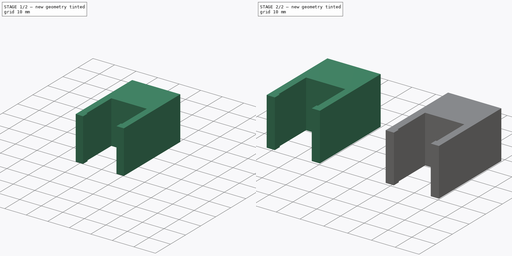
[diagram: build sequence overview — one tinted view per stage of 2, left to right]
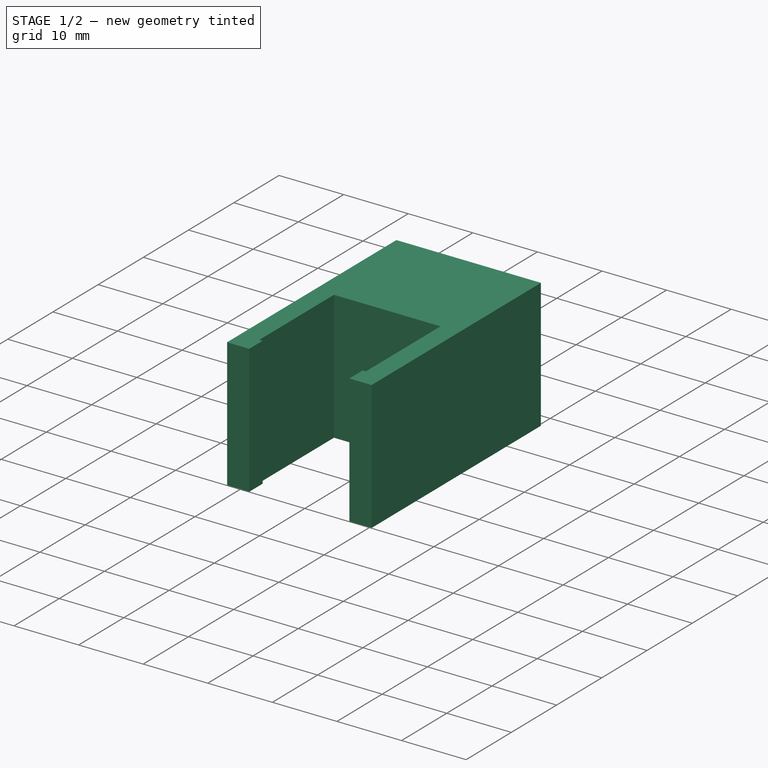
[diagram: stage 1 of 2 — iso view after this stage's code; geometry added in this stage tinted green]
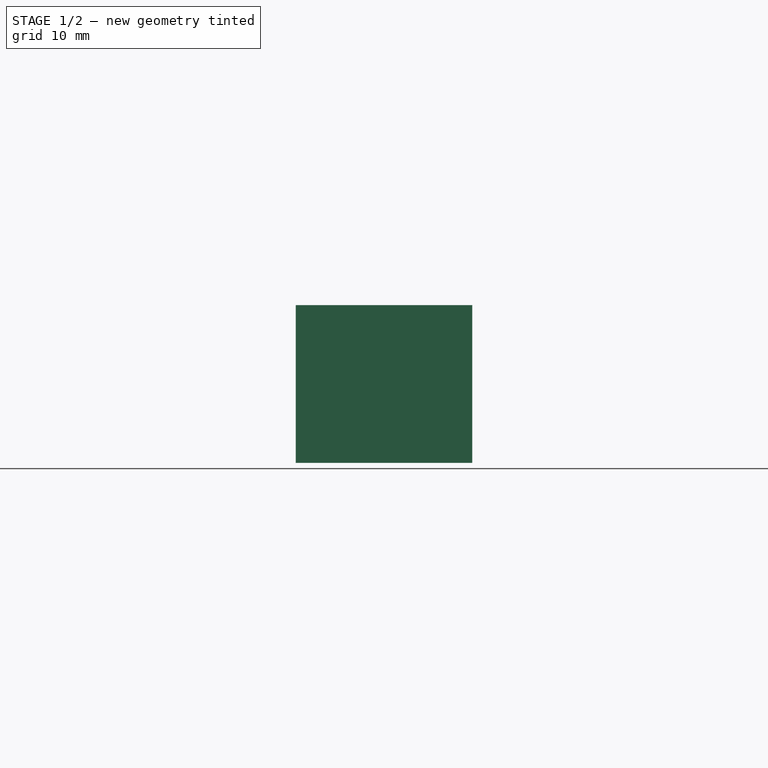
[diagram: stage 1 of 2 — front view after this stage's code; geometry added in this stage tinted green]
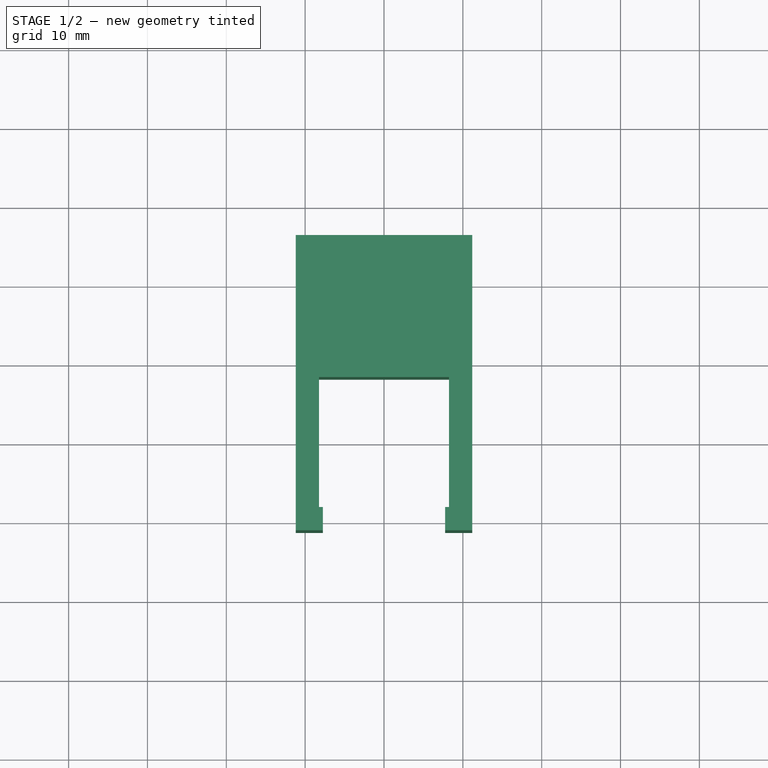
[diagram: stage 1 of 2 — top view after this stage's code; geometry added in this stage tinted green]
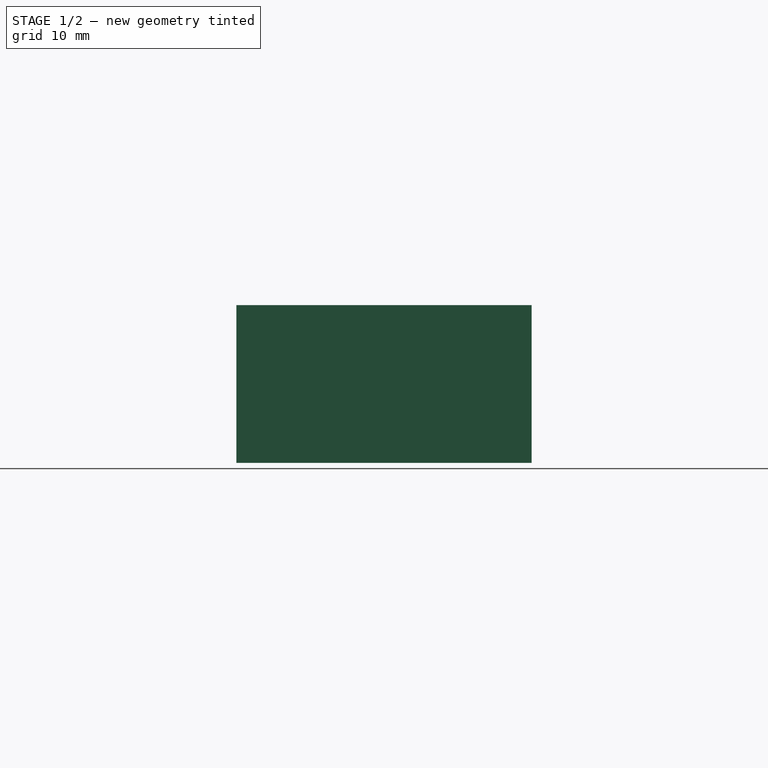
[diagram: stage 1 of 2 — right view after this stage's code; geometry added in this stage tinted green]
FCSTD DOCUMENT  (FreeCAD 1.0R39285 (Git))
Label: moulding-compensating-desk-clips
License: All rights reserved
LicenseURL: https://en.wikipedia.org/wiki/All_rights_reserved
objects: Sketcher::SketchObject×2, PartDesign::Pad×2, PartDesign::Body×2, App::VarSet×1
note: 12 computed .brp shape members not serialized (recipe doc carries the construction recipe); baked Part::Feature solids carry a one-line shape summary decoded from their .brp

FEATURE [PartDesign::Body] Body  label="Smaller Clip"
  AllowCompound = false
  Group = -> [Sketch,Pad]
  Origin = -> Origin
  Tip = -> Pad
FEATURE [Sketcher::SketchObject] Sketch001
  ArcFitTolerance = 1e-06
  AttachmentSupport = -> [XY_Plane001]
  FullyConstrained = false
  MakeInternals = false
  MapMode = 5
  expr: Constraints[20] = VarSet.Base_DistanceToWall2
  sketch-geometry (15):
    g0: LineSegment [constr] StartX=41.75 StartY=-8.25 StartZ=0 EndX=58.25 EndY=-8.25 EndZ=0
    g1: LineSegment StartX=58.25 StartY=-8.25 StartZ=0 EndX=58.25 EndY=8.25 EndZ=0
    g2: LineSegment StartX=58.25 StartY=8.25 StartZ=0 EndX=41.75 EndY=8.25 EndZ=0
    g3: LineSegment StartX=41.75 StartY=8.25 StartZ=0 EndX=41.75 EndY=-8.25 EndZ=0
    g4: GeomPoint [constr] X=50 Y=-1.61e-14 Z=0
    g5: LineSegment StartX=38.81 StartY=26.25 StartZ=0 EndX=38.81 EndY=-11.19 EndZ=0
    g6: LineSegment StartX=38.81 StartY=-11.19 StartZ=0 EndX=42.25 EndY=-11.19 EndZ=0
    g7: LineSegment StartX=61.19 StartY=-11.19 StartZ=0 EndX=61.19 EndY=26.25 EndZ=0
    g8: LineSegment StartX=61.19 StartY=26.25 StartZ=0 EndX=38.81 EndY=26.25 EndZ=0
    g9: GeomPoint [constr] X=50 Y=-1.61e-14 Z=0
    g10: LineSegment StartX=41.75 StartY=-8.25 StartZ=0 EndX=42.25 EndY=-8.25 EndZ=0
    g11: LineSegment StartX=42.25 StartY=-8.25 StartZ=0 EndX=42.25 EndY=-11.19 EndZ=0
    g12: LineSegment StartX=58.25 StartY=-8.25 StartZ=0 EndX=57.75 EndY=-8.25 EndZ=0
    g13: LineSegment StartX=57.75 StartY=-8.25 StartZ=0 EndX=57.75 EndY=-11.19 EndZ=0
    g14: LineSegment StartX=57.75 StartY=-11.19 StartZ=0 EndX=61.19 EndY=-11.19 EndZ=0
  constraints (39):
    c: Coincident(g0,g1)
    c: Coincident(g1,g2)
    c: Coincident(g2,g3)
    c: Coincident(g3,g0)
    c: Horizontal(g0)
    c: Horizontal(g2)
    c: Vertical(g1)
    c: Vertical(g3)
    c: Symmetric(g2,g0,g4)
    c: Distance(g1,g3) = 16.5
    c: Distance(g0,g2) = 16.5
    c: Coincident(g5,g6)
    c: Coincident(g14,g7)
    c: Coincident(g7,g8)
    c: Coincident(g8,g5)
    c: Vertical(g5)
    c: Vertical(g7)
    c: Horizontal(g6)
    c: Horizontal(g8)
    c: Coincident(g9,g4)
    c: Distance(g2,g8) = 18
    c: Distance(g7,g1) = 2.94
    c: Distance(g0,g6) = 2.94
    c: Distance(g5,g3) = 2.94
    c: Coincident(g10,g0)
    c: PointOnObject(g10,g0)
    c: Distance(g10,g10) = 0.5
    c: Coincident(g11,g10)
    c: Vertical(g11)
    c: Coincident(g12,g0)
    c: PointOnObject(g12,g0)
    c: Equal(g12,g10)
    c: Coincident(g13,g12)
    c: PointOnObject(g13,g14)
    c: Vertical(g13)
    c: Coincident(g6,g11)
    c: PointOnObject(g14,g13)
    c: Horizontal(g14)
    c: Equal(g11,g13)
FEATURE [PartDesign::Pad] Pad001
  Direction = (0,0,1)
  Length = 20
  Length2 = 10
  Profile = -> Sketch001
  ReferenceAxis = -> Sketch001 [N_Axis]
  Refine = true
  Suppressed = false
  Type = 0
  expr: Length = VarSet.Base_Height
FEATURE [PartDesign::Body] Body001  label="Body"
  AllowCompound = false
  Group = -> [Sketch001,Pad001]
  Origin = -> Origin001
  Tip = -> Pad001
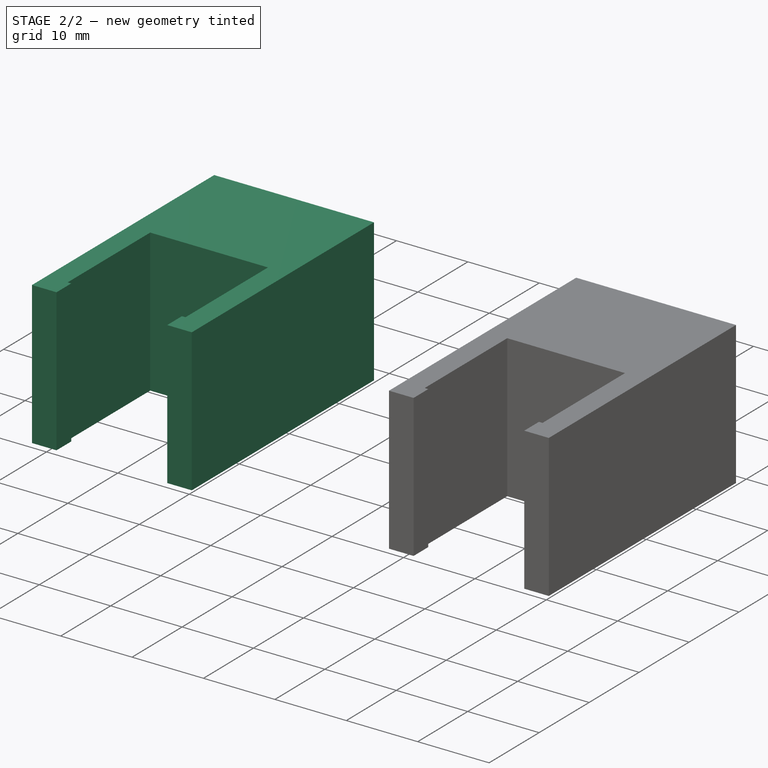
[diagram: stage 2 of 2 — iso view after this stage's code; geometry added in this stage tinted green]
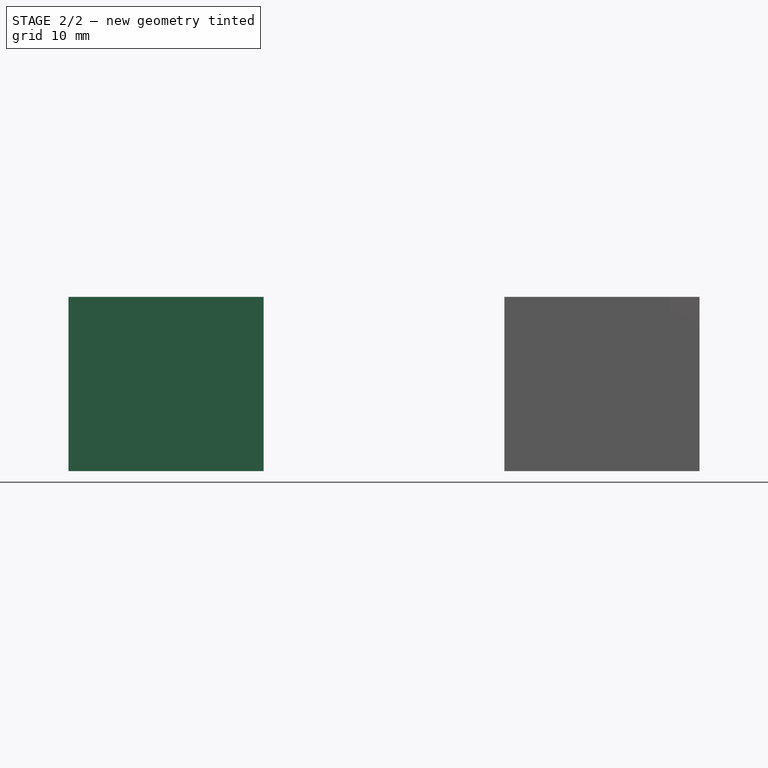
[diagram: stage 2 of 2 — front view after this stage's code; geometry added in this stage tinted green]
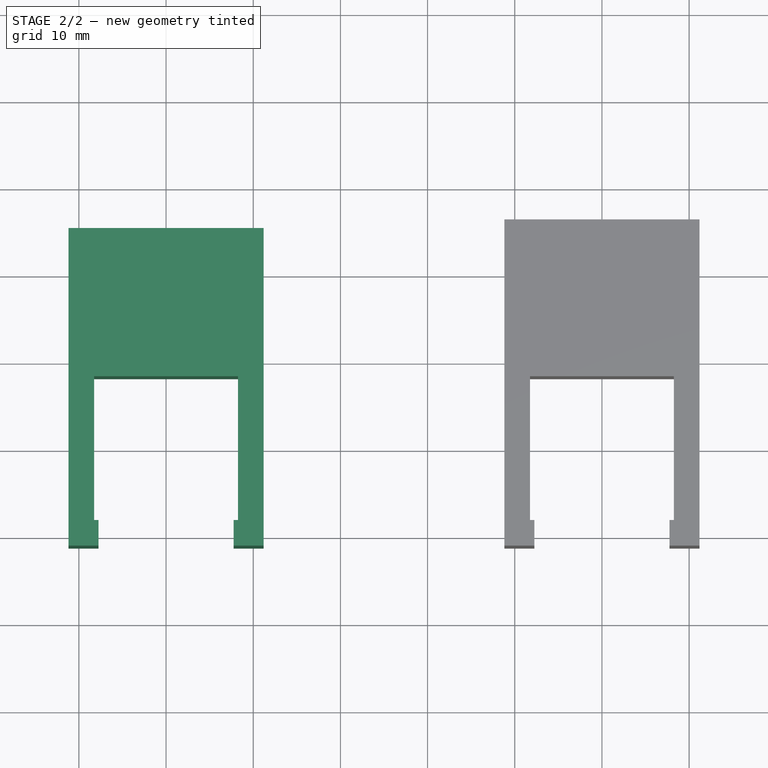
[diagram: stage 2 of 2 — top view after this stage's code; geometry added in this stage tinted green]
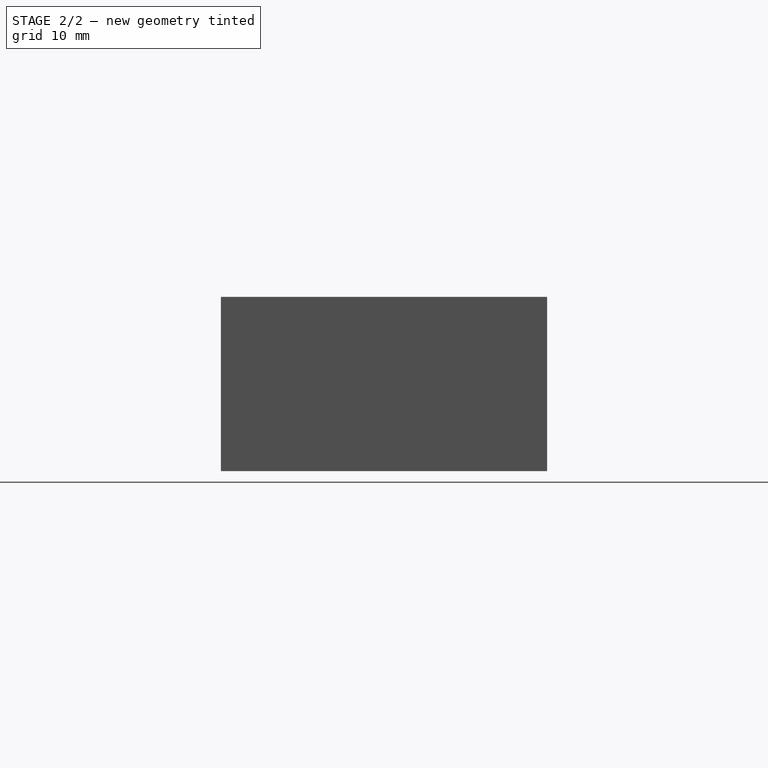
[diagram: stage 2 of 2 — right view after this stage's code; geometry added in this stage tinted green]
FEATURE [Sketcher::SketchObject] Sketch
  ArcFitTolerance = 1e-06
  AttachmentSupport = -> [XY_Plane]
  FullyConstrained = true
  MakeInternals = false
  MapMode = 5
  expr: Constraints[21] = VarSet.Base_DistanceToWall1
  expr: Constraints[22] = VarSet.Base_PartWallThickness
  expr: Constraints[23] = VarSet.Base_PartWallThickness
  expr: Constraints[24] = VarSet.Base_PartWallThickness
  expr: Constraints[27] = VarSet.Base_Tolerance
  expr: Constraints[9] = VarSet.Base_ActualLegWidth + VarSet.Base_Tolerance
  sketch-geometry (15):
    g0: LineSegment [constr] StartX=-8.25 StartY=-8.25 StartZ=0 EndX=8.25 EndY=-8.25 EndZ=0
    g1: LineSegment StartX=8.25 StartY=-8.25 StartZ=0 EndX=8.25 EndY=8.25 EndZ=0
    g2: LineSegment StartX=8.25 StartY=8.25 StartZ=0 EndX=-8.25 EndY=8.25 EndZ=0
    g3: LineSegment StartX=-8.25 StartY=8.25 StartZ=0 EndX=-8.25 EndY=-8.25 EndZ=0
    g4: GeomPoint [constr] X=0 Y=0 Z=0
    g5: LineSegment StartX=-11.19 StartY=25.25 StartZ=0 EndX=-11.19 EndY=-11.19 EndZ=0
    g6: LineSegment StartX=-11.19 StartY=-11.19 StartZ=0 EndX=-7.75 EndY=-11.19 EndZ=0
    g7: LineSegment StartX=11.19 StartY=-11.19 StartZ=0 EndX=11.19 EndY=25.25 EndZ=0
    g8: LineSegment StartX=11.19 StartY=25.25 StartZ=0 EndX=-11.19 EndY=25.25 EndZ=0
    g9: GeomPoint [constr] X=0 Y=0 Z=0
    g10: LineSegment StartX=-8.25 StartY=-8.25 StartZ=0 EndX=-7.75 EndY=-8.25 EndZ=0
    g11: LineSegment StartX=-7.75 StartY=-8.25 StartZ=0 EndX=-7.75 EndY=-11.19 EndZ=0
    g12: LineSegment StartX=8.25 StartY=-8.25 StartZ=0 EndX=7.75 EndY=-8.25 EndZ=0
    g13: LineSegment StartX=7.75 StartY=-8.25 StartZ=0 EndX=7.75 EndY=-11.19 EndZ=0
    g14: LineSegment StartX=7.75 StartY=-11.19 StartZ=0 EndX=11.19 EndY=-11.19 EndZ=0
  constraints (40):
    c: Coincident(g0,g1)
    c: Coincident(g1,g2)
    c: Coincident(g2,g3)
    c: Coincident(g3,g0)
    c: Horizontal(g0)
    c: Horizontal(g2)
    c: Vertical(g1)
    c: Vertical(g3)
    c: Symmetric(g2,g0,g4)
    c: Distance(g1,g3) = 16.5
    c: Distance(g0,g2) = 16.5
    c: Coincident(g4,g-1)
    c: Coincident(g5,g6)
    c: Coincident(g14,g7)
    c: Coincident(g7,g8)
    c: Coincident(g8,g5)
    c: Vertical(g5)
    c: Vertical(g7)
    c: Horizontal(g6)
    c: Horizontal(g8)
    c: Coincident(g9,g4)
    c: Distance(g2,g8) = 17
    c: Distance(g7,g1) = 2.94
    c: Distance(g0,g6) = 2.94
    c: Distance(g5,g3) = 2.94
    c: Coincident(g10,g0)
    c: PointOnObject(g10,g0)
    c: Distance(g10,g10) = 0.5
    c: Coincident(g11,g10)
    c: Vertical(g11)
    c: Coincident(g12,g0)
    c: PointOnObject(g12,g0)
    c: Equal(g12,g10)
    c: Coincident(g13,g12)
    c: PointOnObject(g13,g14)
    c: Vertical(g13)
    c: Coincident(g6,g11)
    c: PointOnObject(g14,g13)
    c: Horizontal(g14)
    c: Equal(g11,g13)
FEATURE [App::VarSet] VarSet
  Base_ActualLegWidth = 16
  Base_DistanceToWall1 = 17
  Base_DistanceToWall2 = 18
  Base_Height = 20
  Base_PartWallThickness = 2.94
  Base_Tolerance = 0.5
  expr: Base_PartWallThickness = 7 * 0.42
FEATURE [PartDesign::Pad] Pad
  Direction = (0,0,1)
  Length = 20
  Length2 = 10
  Profile = -> Sketch
  ReferenceAxis = -> Sketch [N_Axis]
  Refine = true
  Suppressed = false
  Type = 0
  expr: Length = VarSet.Base_Height
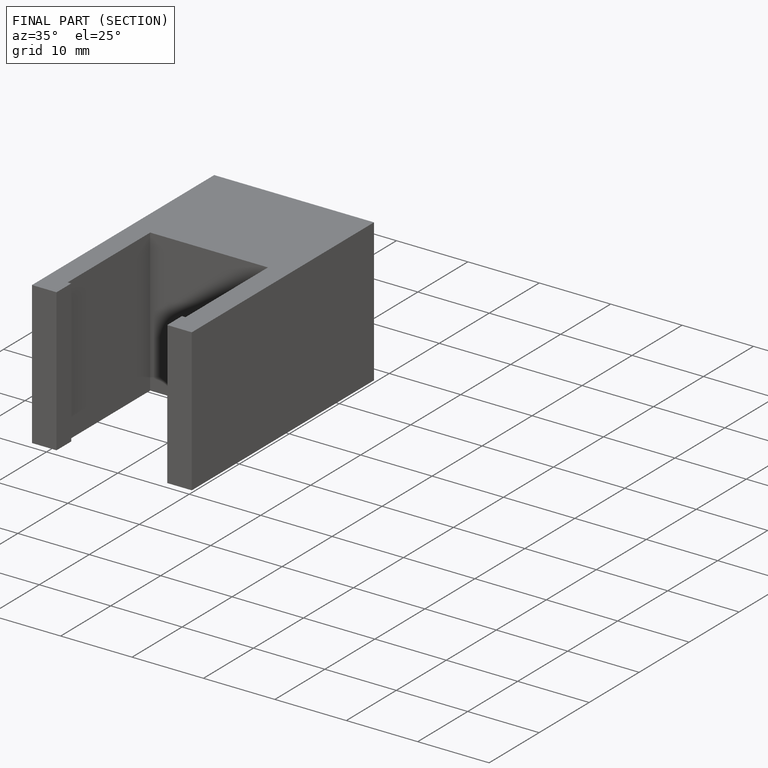
[diagram: finished part — half-section view (interior)]
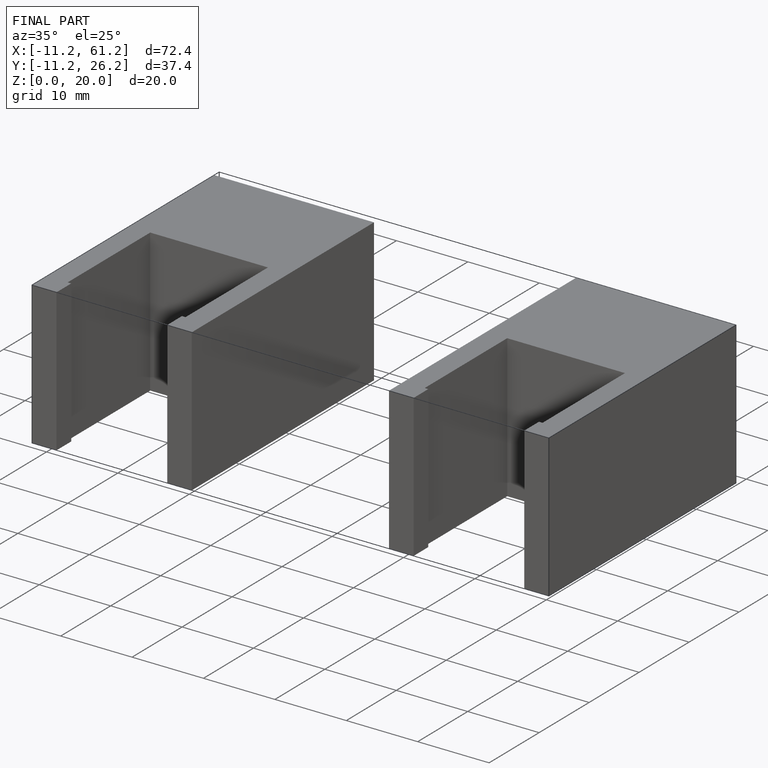
[diagram: finished part — iso view with bounding-box wireframe]
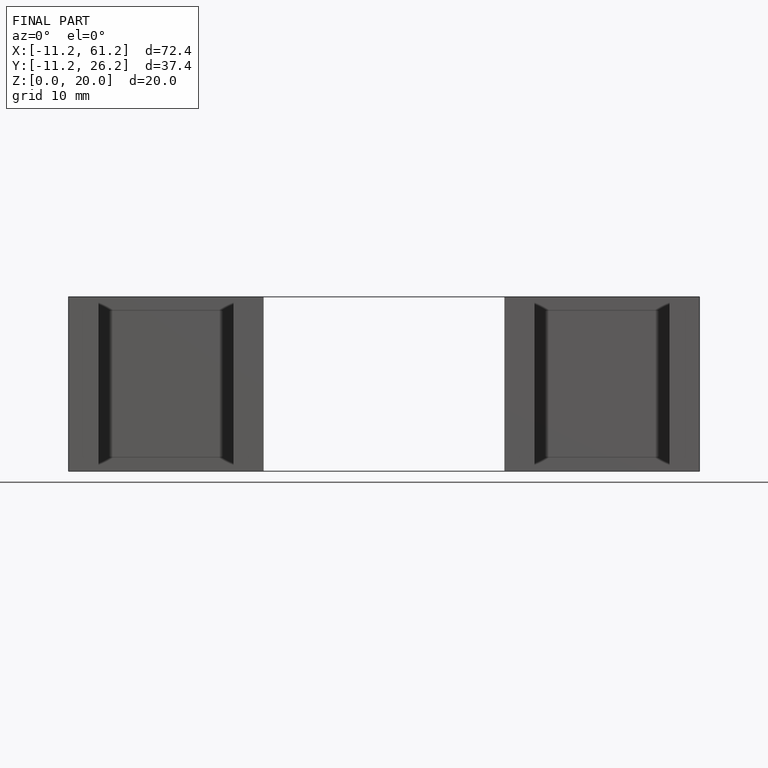
[diagram: finished part — front view with bounding-box wireframe]
